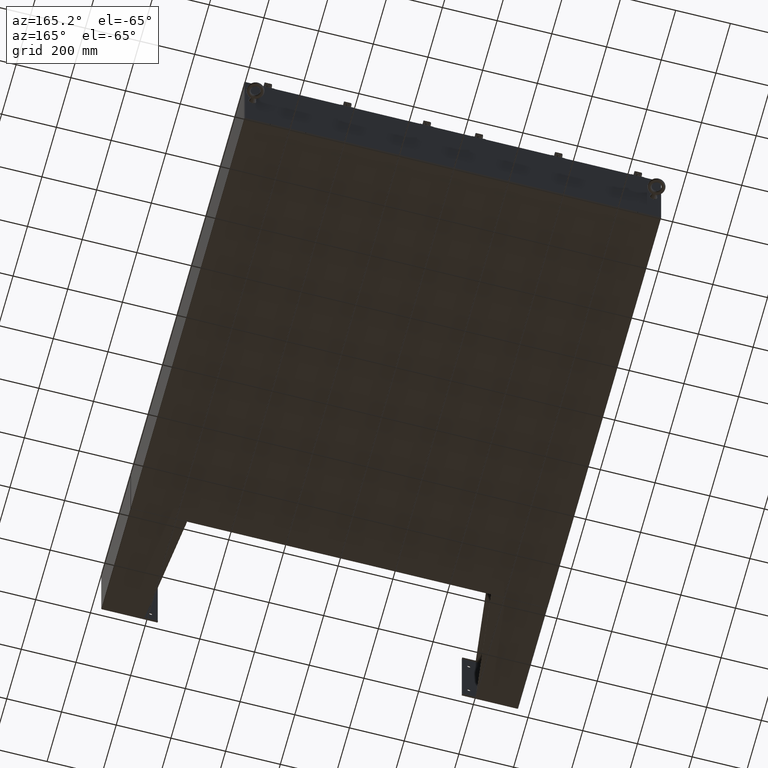
[diagram: clean part render]
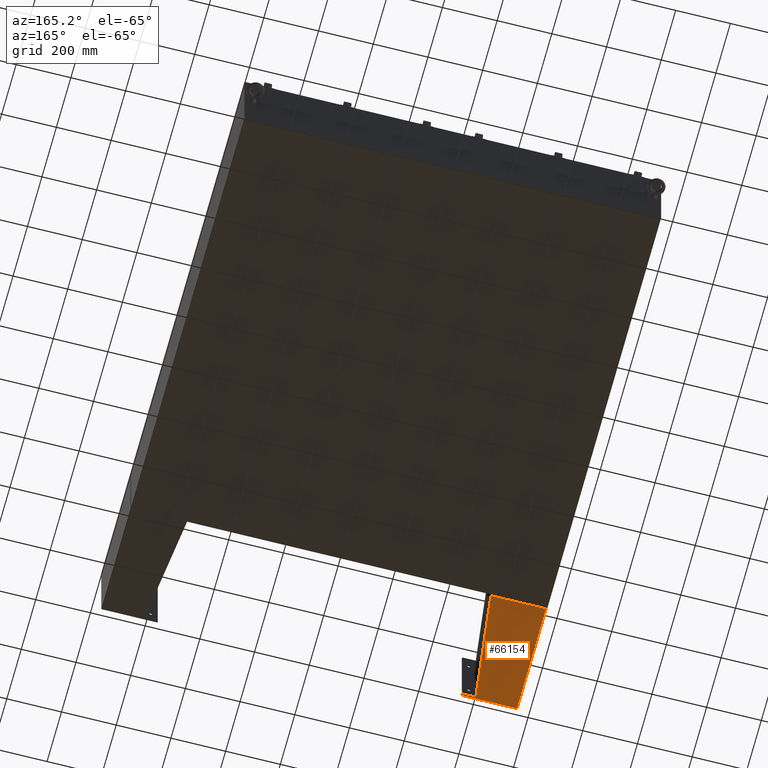
[diagram: same view with one face highlighted and labeled with its STEP entity id]
A machine part, auxiliary view. The second image highlights one B-rep face of the part: STEP entity #66154.
In plain terms, the highlighted planar face has unit normal (-0, -0, 1).
Its self-contained STEP definition (entity closure, byte-faithful):
#840 = VERTEX_POINT ( 'NONE', #28361 ) ;
#1524 = ORIENTED_EDGE ( 'NONE', *, *, #42464, .T. ) ;
#2253 = ORIENTED_EDGE ( 'NONE', *, *, #56281, .T. ) ;
#3788 = ORIENTED_EDGE ( 'NONE', *, *, #50101, .F. ) ;
#3961 = CARTESIAN_POINT ( 'NONE',  ( 5.999999999999999100, -8.000000000000000000, 0.03900000000001671600 ) ) ;
#4086 = VECTOR ( 'NONE', #69533, 39.37007874015748100 ) ;
#5359 = EDGE_CURVE ( 'NONE', #36212, #63216, #54336, .T. ) ;
#5485 = LINE ( 'NONE', #38552, #30689 ) ;
#7065 = DIRECTION ( 'NONE',  ( 0.0000000000000000000, 0.0000000000000000000, 1.000000000000000000 ) ) ;
#9392 = DIRECTION ( 'NONE',  ( -0.0000000000000000000, -1.000000000000000000, 0.0000000000000000000 ) ) ;
#11481 = EDGE_CURVE ( 'NONE', #21584, #40582, #16364, .T. ) ;
#11909 = CARTESIAN_POINT ( 'NONE',  ( 6.000000000000029300, -7.749999999999999100, 8.001000000000017200 ) ) ;
#15114 = DIRECTION ( 'NONE',  ( -1.000000000000000000, 0.0000000000000000000, 3.550958521948298200E-015 ) ) ;
#16364 = LINE ( 'NONE', #3961, #30643 ) ;
#17774 = LINE ( 'NONE', #60439, #59051 ) ;
#21584 = VERTEX_POINT ( 'NONE', #24944 ) ;
#22219 = AXIS2_PLACEMENT_3D ( 'NONE', #41471, #15114, #52795 ) ;
#22757 = DIRECTION ( 'NONE',  ( 0.0000000000000000000, -1.000000000000000000, 0.0000000000000000000 ) ) ;
#24214 = CARTESIAN_POINT ( 'NONE',  ( 6.000000000000029300, -7.999999999999999100, 8.001000000000017200 ) ) ;
#24944 = CARTESIAN_POINT ( 'NONE',  ( 6.000000000000016000, 7.856999999999996700, 0.03900000000001671600 ) ) ;
#25301 = VERTEX_POINT ( 'NONE', #24214 ) ;
#28361 = CARTESIAN_POINT ( 'NONE',  ( 6.000000000000016000, 7.856999999999995800, 8.001000000000017200 ) ) ;
#28792 = EDGE_LOOP ( 'NONE', ( #35195, #60380, #1524, #58618, #2253, #3788 ) ) ;
#30643 = VECTOR ( 'NONE', #9392, 39.37007874015748100 ) ;
#30689 = VECTOR ( 'NONE', #60003, 39.37007874015748100 ) ;
#34624 = LINE ( 'NONE', #60722, #63320 ) ;
#34662 = EDGE_CURVE ( 'NONE', #36212, #25301, #17774, .T. ) ;
#35195 = ORIENTED_EDGE ( 'NONE', *, *, #5359, .F. ) ;
#36212 = VERTEX_POINT ( 'NONE', #62680 ) ;
#37555 = CARTESIAN_POINT ( 'NONE',  ( 6.000000000000000900, -8.000000000000001800, 0.03899999999999890400 ) ) ;
#38552 = CARTESIAN_POINT ( 'NONE',  ( 6.000000000000022200, -7.749999999999999100, 6.052216497445952500 ) ) ;
#40582 = VERTEX_POINT ( 'NONE', #37555 ) ;
#41471 = CARTESIAN_POINT ( 'NONE',  ( 6.000000000000029300, -7.999999999999999100, 8.001000000000017200 ) ) ;
#42310 = FACE_OUTER_BOUND ( 'NONE', #28792, .T. ) ;
#42464 = EDGE_CURVE ( 'NONE', #25301, #40582, #61365, .T. ) ;
#47398 = PLANE ( 'NONE',  #22219 ) ;
#49572 = DIRECTION ( 'NONE',  ( -3.550958521948298200E-015, -0.0000000000000000000, -1.000000000000000000 ) ) ;
#50101 = EDGE_CURVE ( 'NONE', #63216, #840, #5485, .T. ) ;
#50739 = CARTESIAN_POINT ( 'NONE',  ( 6.000000000000021300, -7.749999999999999100, 6.052216497445952500 ) ) ;
#52795 = DIRECTION ( 'NONE',  ( 3.550958521948298200E-015, 0.0000000000000000000, 1.000000000000000000 ) ) ;
#54336 = LINE ( 'NONE', #11909, #68634 ) ;
#56281 = EDGE_CURVE ( 'NONE', #21584, #840, #34624, .T. ) ;
#58618 = ORIENTED_EDGE ( 'NONE', *, *, #11481, .F. ) ;
#59051 = VECTOR ( 'NONE', #22757, 39.37007874015748100 ) ;
#60003 = DIRECTION ( 'NONE',  ( 4.399772607369798900E-016, 0.9922942345449394800, 0.1239038017531047700 ) ) ;
#60380 = ORIENTED_EDGE ( 'NONE', *, *, #34662, .T. ) ;
#60439 = CARTESIAN_POINT ( 'NONE',  ( 6.000000000000029300, -7.999999999999999100, 8.001000000000017200 ) ) ;
#60722 = CARTESIAN_POINT ( 'NONE',  ( 6.000000000000016000, 7.856999999999994000, 0.03900000000001780500 ) ) ;
#61365 = LINE ( 'NONE', #63681, #4086 ) ;
#62680 = CARTESIAN_POINT ( 'NONE',  ( 6.000000000000029300, -7.749999999999999100, 8.001000000000033200 ) ) ;
#63216 = VERTEX_POINT ( 'NONE', #50739 ) ;
#63320 = VECTOR ( 'NONE', #7065, 39.37007874015748100 ) ;
#63681 = CARTESIAN_POINT ( 'NONE',  ( 6.000000000000029300, -7.999999999999999100, 8.001000000000017200 ) ) ;
#66154 = ADVANCED_FACE ( 'NONE', ( #42310 ), #47398, .F. ) ;
#68634 = VECTOR ( 'NONE', #49572, 39.37007874015748100 ) ;
#69533 = DIRECTION ( 'NONE',  ( -3.550958521948298200E-015, -2.731506555344845100E-016, -1.000000000000000000 ) ) ;